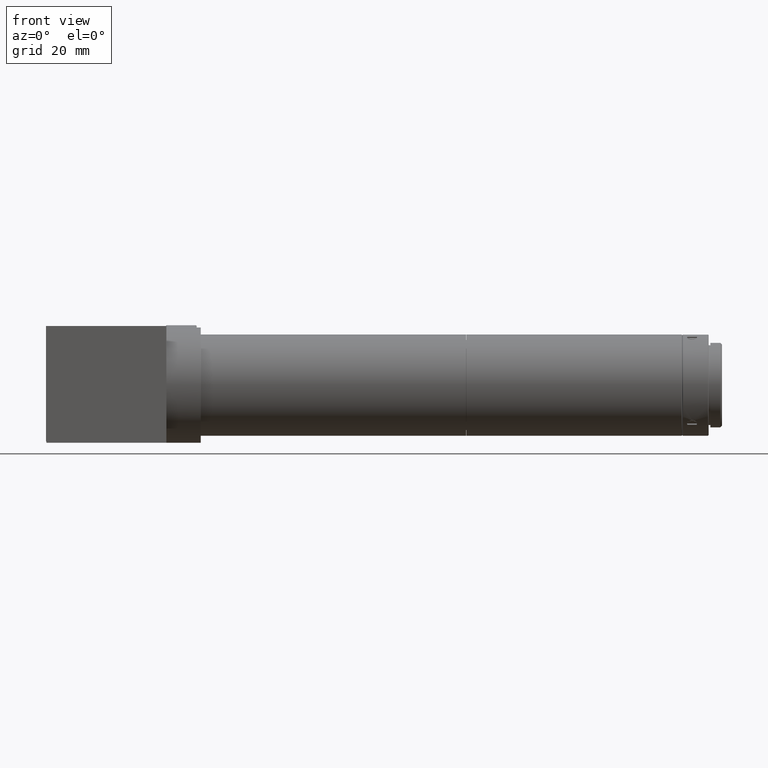
[diagram: clean part render]
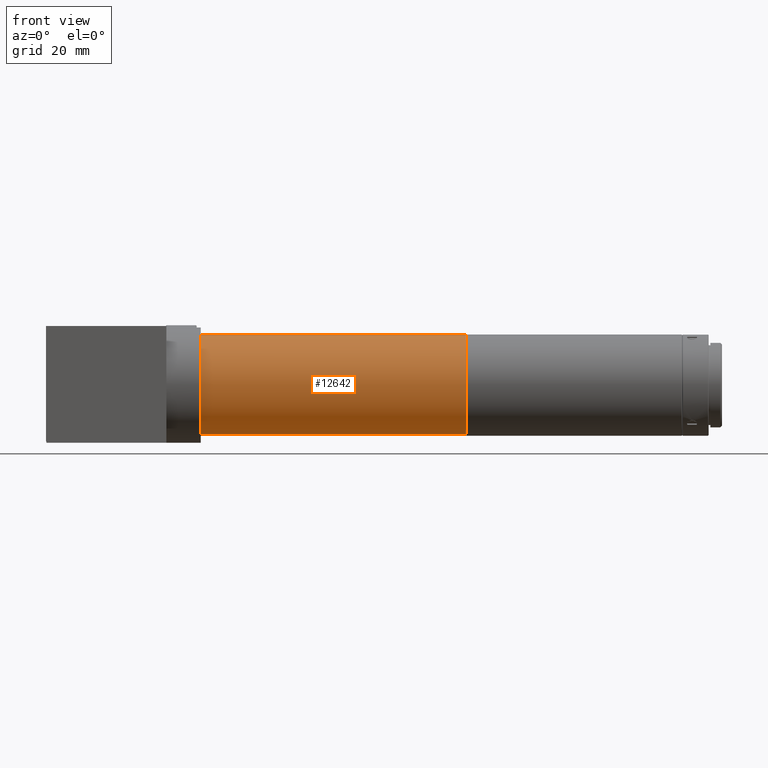
[diagram: same view with one face highlighted and labeled with its STEP entity id]
A machine part, front view. The second image highlights one B-rep face of the part: STEP entity #12642.
In plain terms, the highlighted cylindrical surface (partial cylindrical patch) has radius 15.2 mm, axis along (-1, 0, 0).
Its self-contained STEP definition (entity closure, byte-faithful):
#1057 = ORIENTED_EDGE ( 'NONE', *, *, #12947, .T. ) ;
#1757 = ORIENTED_EDGE ( 'NONE', *, *, #15550, .T. ) ;
#1946 = CARTESIAN_POINT ( 'NONE',  ( 0.000000000000000000, 0.000000000000000000, 0.000000000000000000 ) ) ;
#2008 = VERTEX_POINT ( 'NONE', #12105 ) ;
#2250 = DIRECTION ( 'NONE',  ( -1.000000000000000000, 0.000000000000000000, 0.000000000000000000 ) ) ;
#2936 = CIRCLE ( 'NONE', #7709, 15.20000000000250040 ) ;
#3188 = DIRECTION ( 'NONE',  ( 1.000000000000000000, 0.000000000000000000, 0.000000000000000000 ) ) ;
#3518 = VECTOR ( 'NONE', #6415, 1000.000000000000000 ) ;
#4213 = ORIENTED_EDGE ( 'NONE', *, *, #12148, .F. ) ;
#4340 = LINE ( 'NONE', #11566, #5951 ) ;
#4527 = CARTESIAN_POINT ( 'NONE',  ( 16.26161263232919652, 0.000000000000000000, 0.000000000000000000 ) ) ;
#5241 = CARTESIAN_POINT ( 'NONE',  ( 0.000000000000000000, 0.000000000000000000, 15.20000000000250040 ) ) ;
#5433 = CIRCLE ( 'NONE', #13459, 15.20000000000250040 ) ;
#5506 = AXIS2_PLACEMENT_3D ( 'NONE', #1946, #2250, #15472 ) ;
#5951 = VECTOR ( 'NONE', #15123, 1000.000000000000000 ) ;
#6415 = DIRECTION ( 'NONE',  ( -1.000000000000000000, 0.000000000000000000, 0.000000000000000000 ) ) ;
#7709 = AXIS2_PLACEMENT_3D ( 'NONE', #4527, #3188, #8078 ) ;
#7834 = CARTESIAN_POINT ( 'NONE',  ( 16.26161263232919652, 1.861463134704283170E-15, -15.20000000000250040 ) ) ;
#8078 = DIRECTION ( 'NONE',  ( 0.000000000000000000, 0.000000000000000000, 1.000000000000000000 ) ) ;
#9115 = CARTESIAN_POINT ( 'NONE',  ( 95.86075495384081080, 1.861463134704283170E-15, -15.20000000000250040 ) ) ;
#10118 = LINE ( 'NONE', #5241, #3518 ) ;
#10367 = FACE_OUTER_BOUND ( 'NONE', #11782, .T. ) ;
#11566 = CARTESIAN_POINT ( 'NONE',  ( 0.000000000000000000, 1.861463134704283170E-15, -15.20000000000250040 ) ) ;
#11706 = VERTEX_POINT ( 'NONE', #7834 ) ;
#11782 = EDGE_LOOP ( 'NONE', ( #4213, #1757, #1057, #14836 ) ) ;
#12105 = CARTESIAN_POINT ( 'NONE',  ( 16.26161263232919652, 0.000000000000000000, 15.20000000000250040 ) ) ;
#12148 = EDGE_CURVE ( 'NONE', #12524, #11706, #4340, .T. ) ;
#12200 = DIRECTION ( 'NONE',  ( -1.000000000000000000, 0.000000000000000000, 0.000000000000000000 ) ) ;
#12393 = VERTEX_POINT ( 'NONE', #14697 ) ;
#12524 = VERTEX_POINT ( 'NONE', #9115 ) ;
#12642 = ADVANCED_FACE ( 'NONE', ( #10367 ), #13978, .T. ) ;
#12947 = EDGE_CURVE ( 'NONE', #12393, #2008, #10118, .T. ) ;
#13387 = CARTESIAN_POINT ( 'NONE',  ( 95.86075495384081080, 0.000000000000000000, 0.000000000000000000 ) ) ;
#13459 = AXIS2_PLACEMENT_3D ( 'NONE', #13387, #12200, #14731 ) ;
#13978 = CYLINDRICAL_SURFACE ( 'NONE', #5506, 15.20000000000250040 ) ;
#14409 = EDGE_CURVE ( 'NONE', #2008, #11706, #2936, .T. ) ;
#14697 = CARTESIAN_POINT ( 'NONE',  ( 95.86075495384081080, 0.000000000000000000, 15.20000000000250040 ) ) ;
#14731 = DIRECTION ( 'NONE',  ( 0.000000000000000000, 0.000000000000000000, 1.000000000000000000 ) ) ;
#14836 = ORIENTED_EDGE ( 'NONE', *, *, #14409, .T. ) ;
#15123 = DIRECTION ( 'NONE',  ( -1.000000000000000000, 0.000000000000000000, 0.000000000000000000 ) ) ;
#15472 = DIRECTION ( 'NONE',  ( 0.000000000000000000, 0.000000000000000000, 1.000000000000000000 ) ) ;
#15550 = EDGE_CURVE ( 'NONE', #12524, #12393, #5433, .T. ) ;